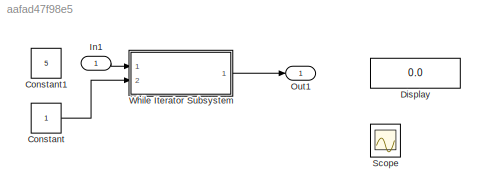
MODEL slx_aafad47f98e5
KIND model
CONFIG AbsTol = auto
CONFIG EnableMultiTasking = off
CONFIG FixedStep = auto
CONFIG MaxStep = auto
CONFIG MinStep = auto
CONFIG RelTol = 1e-3
CONFIG SampleTimeConstraint = Unconstrained
CONFIG SolverName = FixedStepDiscrete
CONFIG StartTime = 0.0
CONFIG StopTime = 10.0
BLOCK [Constant] Constant
  OutDataTypeStr = int32
BLOCK [Constant] Constant1
  OutDataTypeStr = int32
  Value = 5
BLOCK [Display] Display
  Decimation = 1
  Ports = [1]
BLOCK [Inport] In1
BLOCK [Outport] Out1
BLOCK [Scope] Scope
  Floating = off
  NumInputPorts = 2
  Ports = [2]
  ScopeSpecificationString = Simulink.scopes.TimeScopeBlockCfg('CurrentConfiguration', extmgr.ConfigurationSet(extmgr.Configuration('Core','General UI',true),extmgr.Configuration('Core','Source UI',true),extmgr.Configuration('Sources','WiredSimulink',true),extmgr.Configuration('Visuals','Time Domain',true,'SerializedDisplays',{struct('MinYLimReal','5.00000','MaxYLimReal','7.00000','YLabelReal','','MinYLimMag','5.00000','MaxYL...<+2041ch>
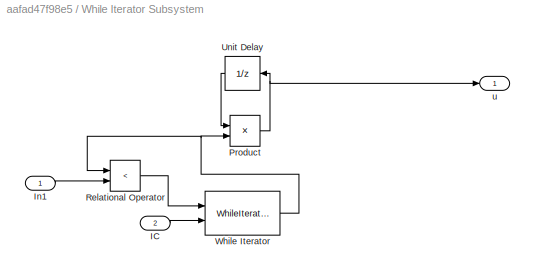
BLOCK [SubSystem] While Iterator Subsystem
  Ports = [2, 1]
  RequestExecContextInheritance = off
  TreatAsAtomicUnit = on
BLOCK [Inport] While Iterator Subsystem/IC
  Port = 2
BLOCK [Inport] While Iterator Subsystem/In1
BLOCK [Product] While Iterator Subsystem/Product
  OutDataTypeStr = int32
  Ports = [2, 1]
BLOCK [RelationalOperator] While Iterator Subsystem/Relational Operator
  InputSameDT = off
  Operator = <
  OutDataTypeStr = boolean
  Ports = [2, 1]
  RndMeth = Simplest
BLOCK [UnitDelay] While Iterator Subsystem/Unit Delay
  HasFrameUpgradeWarning = on
  InitialCondition = 1
  SampleTime = -1
BLOCK [WhileIterator] While Iterator Subsystem/While Iterator
  MaxIters = 20
  Ports = [2, 1]
  ShowIterationPort = on
BLOCK [Outport] While Iterator Subsystem/u
LINE Constant:1 -> While Iterator Subsystem:2
LINE In1:1 -> While Iterator Subsystem:1
LINE While Iterator Subsystem/IC:1 -> While Iterator Subsystem/While Iterator:2
LINE While Iterator Subsystem/In1:1 -> While Iterator Subsystem/Relational Operator:2
NET While Iterator Subsystem/Product:1 -> While Iterator Subsystem/Unit Delay:1, While Iterator Subsystem/u:1
LINE While Iterator Subsystem/Relational Operator:1 -> While Iterator Subsystem/While Iterator:1
LINE While Iterator Subsystem/Unit Delay:1 -> While Iterator Subsystem/Product:1
NET While Iterator Subsystem/While Iterator:1 -> While Iterator Subsystem/Product:2, While Iterator Subsystem/Relational Operator:1
LINE While Iterator Subsystem:1 -> Out1:1
note: NET lines group one-source signal fan-out (src -> all destinations, sorted); 1:1 wires keep LINE
